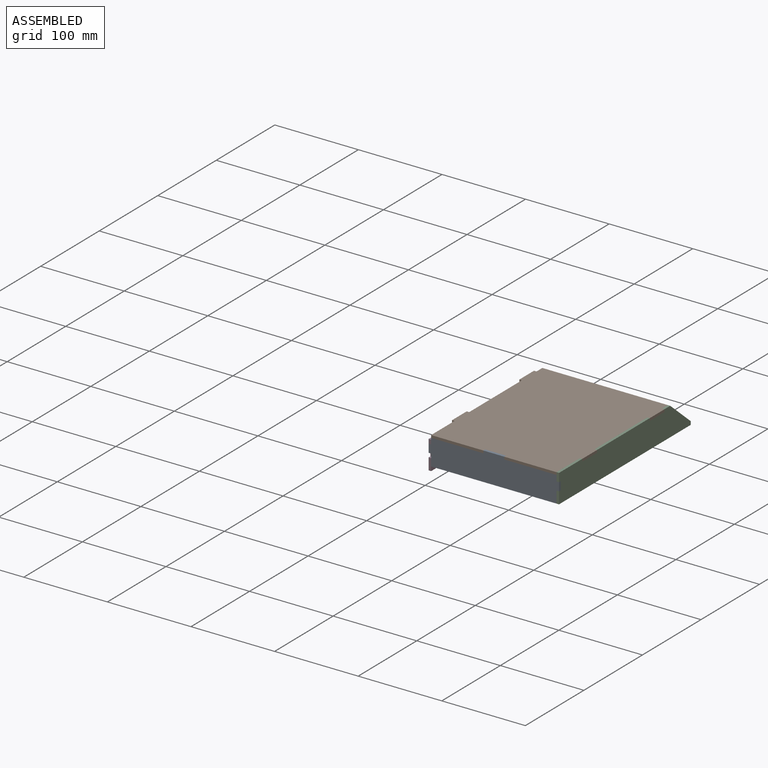
[diagram: assembled view]
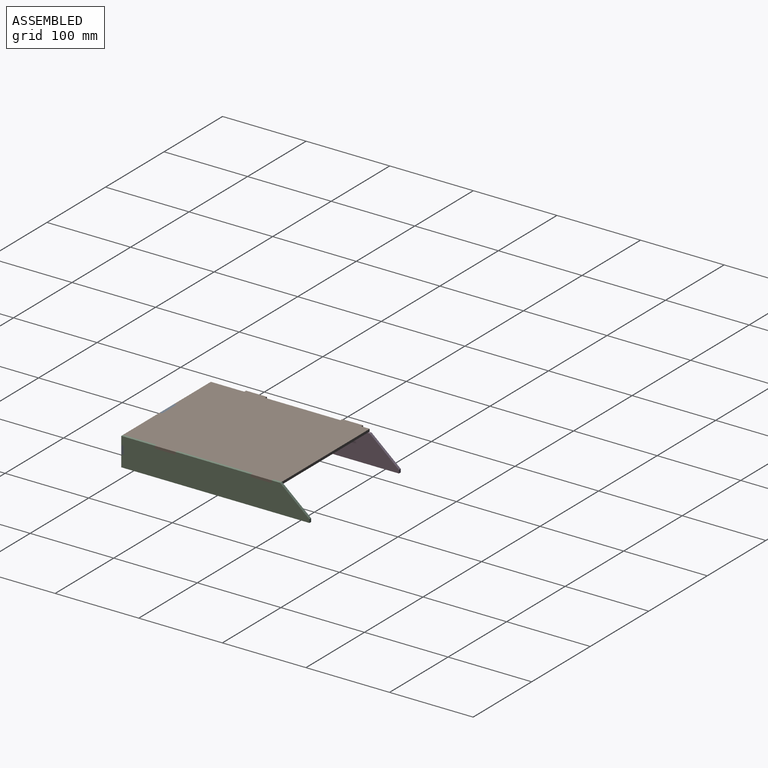
[diagram: assembled view, second angle]
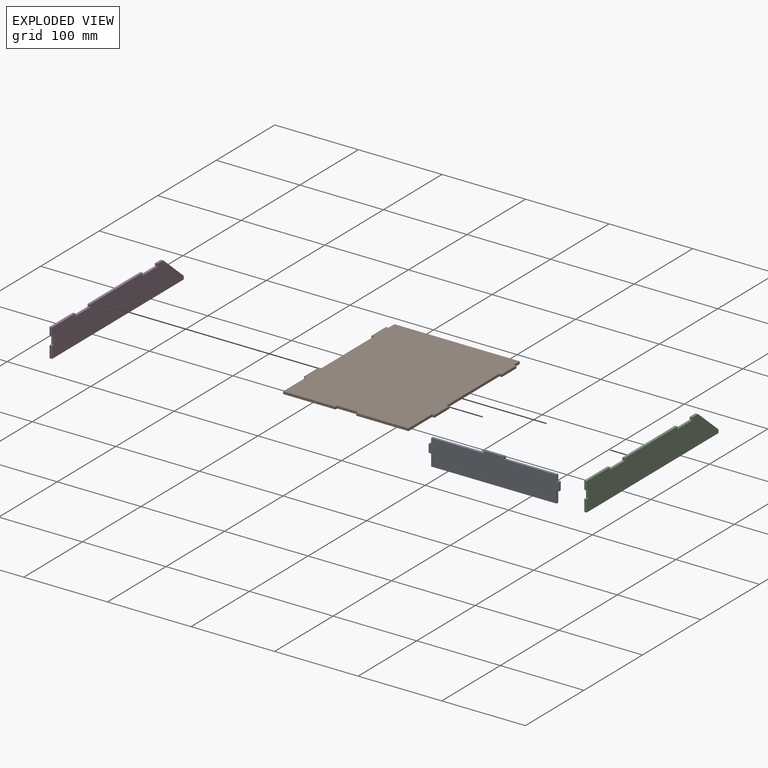
[diagram: exploded view]
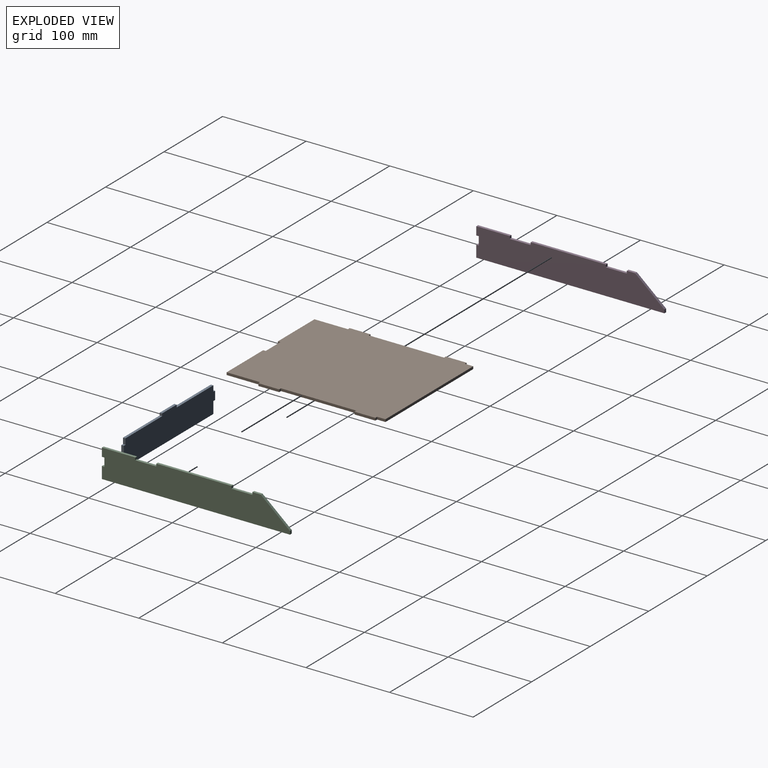
[diagram: exploded view, second angle]
ASSEMBLY  parts=4 mates=6
PART A: 18 faces, bbox 156x34x3 mm
  f0: plane 62.5x3mm, normal (0,1,0), area 187.5mm2, adj f1,f15,f16,f17
  f1: plane 7x3mm, normal (-1,0,0), area 21mm2, adj f0,f2,f16,f17
  f2: plane 3x3mm, normal (0,1,0), area 9mm2, adj f1,f3,f16,f17
  f3: plane 10x3mm, normal (-1,0,0), area 30mm2, adj f2,f4,f16,f17
  f4: plane 3x3mm, normal (0,-1,0), area 9mm2, adj f3,f5,f16,f17
  f5: plane 14x3mm, normal (-1,0,0), area 42mm2, adj f4,f6,f16,f17
  f6: plane 150x3mm, normal (0,-1,0), area 450mm2, adj f5,f7,f16,f17
  f7: plane 14x3mm, normal (1,0,0), area 42mm2, adj f6,f8,f16,f17
  f8: plane 3x3mm, normal (0,-1,0), area 9mm2, adj f7,f9,f16,f17
  f9: plane 10x3mm, normal (1,0,0), area 30mm2, adj f8,f10,f16,f17
  f10: plane 3x3mm, normal (0,1,0), area 9mm2, adj f9,f11,f16,f17
  f11: plane 7x3mm, normal (1,0,0), area 21mm2, adj f10,f12,f16,f17
  f12: plane 62.5x3mm, normal (0,1,0), area 187.5mm2, adj f11,f13,f16,f17
  f13: plane 3x3mm, normal (1,0,0), area 9mm2, adj f12,f14,f16,f17
  f14: plane 25x3mm, normal (0,1,0), area 75mm2, adj f13,f15,f16,f17
  f15: plane 3x3mm, normal (-1,0,0), area 9mm2, adj f0,f14,f16,f17
  f16: plane 156x34mm, normal (0,0,1), area 4785mm2, adj f0,f1,f2,f3,f4,f5,f6,f7
  f17: plane 156x34mm, normal (0,0,-1), area 4785mm2, adj f0,f1,f2,f3,f4,f5,f6,f7
PART B: 26 faces, bbox 156x190x3 mm
  f0: plane 3x3mm, normal (-1,0,0), area 9mm2, adj f1,f23,f24,f25
  f1: plane 62.5x3mm, normal (0,-1,0), area 187.5mm2, adj f0,f2,f24,f25
  f2: plane 40x3mm, normal (1,0,0), area 120mm2, adj f1,f3,f24,f25
  f3: plane 3x3mm, normal (0,-1,0), area 9mm2, adj f2,f4,f24,f25
  f4: plane 25x3mm, normal (1,0,0), area 75mm2, adj f3,f5,f24,f25
  f5: plane 3x3mm, normal (0,1,0), area 9mm2, adj f4,f6,f24,f25
  f6: plane 90x3mm, normal (1,0,0), area 270mm2, adj f5,f7,f24,f25
  f7: plane 3x3mm, normal (0,-1,0), area 9mm2, adj f6,f8,f24,f25
  f8: plane 25x3mm, normal (1,0,0), area 75mm2, adj f7,f9,f24,f25
  f9: plane 3x3mm, normal (0,1,0), area 9mm2, adj f8,f10,f24,f25
  f10: plane 10x3mm, normal (1,0,0), area 30mm2, adj f9,f11,f24,f25
  f11: plane 150x3mm, normal (0,1,0), area 450mm2, adj f10,f12,f24,f25
  f12: plane 10x3mm, normal (-1,0,0), area 30mm2, adj f11,f13,f24,f25
  f13: plane 3x3mm, normal (0,1,0), area 9mm2, adj f12,f14,f24,f25
  f14: plane 25x3mm, normal (-1,0,0), area 75mm2, adj f13,f15,f24,f25
  f15: plane 3x3mm, normal (0,-1,0), area 9mm2, adj f14,f16,f24,f25
  f16: plane 90x3mm, normal (-1,0,0), area 270mm2, adj f15,f17,f24,f25
  f17: plane 3x3mm, normal (0,1,0), area 9mm2, adj f16,f18,f24,f25
  f18: plane 25x3mm, normal (-1,0,0), area 75mm2, adj f17,f19,f24,f25
  f19: plane 3x3mm, normal (0,-1,0), area 9mm2, adj f18,f20,f24,f25
  f20: plane 40x3mm, normal (-1,0,0), area 120mm2, adj f19,f21,f24,f25
  f21: plane 62.5x3mm, normal (0,-1,0), area 187.5mm2, adj f20,f22,f24,f25
  f22: plane 3x3mm, normal (1,0,0), area 9mm2, adj f21,f23,f24,f25
  f23: plane 25x3mm, normal (0,-1,0), area 75mm2, adj f0,f22,f24,f25
  f24: plane 190x156mm, normal (0,0,1), area 28725mm2, adj f0,f1,f2,f3,f4,f5,f6,f7
  f25: plane 190x156mm, normal (0,0,-1), area 28725mm2, adj f0,f1,f2,f3,f4,f5,f6,f7
PART C: 19 faces, bbox 34x225x3 mm
  f0: plane 35x30mm, normal (-0.76,0.65,0), area 138.3mm2, adj f1,f16,f17,f18
  f1: plane 10x3mm, normal (-1,0,0), area 30mm2, adj f0,f2,f17,f18
  f2: plane 3x3mm, normal (0,-1,0), area 9mm2, adj f1,f3,f17,f18
  f3: plane 25x3mm, normal (-1,0,0), area 75mm2, adj f2,f4,f17,f18
  f4: plane 3x3mm, normal (0,1,0), area 9mm2, adj f3,f5,f17,f18
  f5: plane 90x3mm, normal (-1,0,0), area 270mm2, adj f4,f6,f17,f18
  f6: plane 3x3mm, normal (0,-1,0), area 9mm2, adj f5,f7,f17,f18
  f7: plane 25x3mm, normal (-1,0,0), area 75mm2, adj f6,f8,f17,f18
  f8: plane 3x3mm, normal (0,1,0), area 9mm2, adj f7,f9,f17,f18
  f9: plane 40x3mm, normal (-1,0,0), area 120mm2, adj f8,f10,f17,f18
  f10: plane 10x3mm, normal (0,-1,0), area 30mm2, adj f9,f11,f17,f18
  f11: plane 3x3mm, normal (1,0,0), area 9mm2, adj f10,f12,f17,f18
  f12: plane 10x3mm, normal (0,-1,0), area 30mm2, adj f11,f13,f17,f18
  f13: plane 3x3mm, normal (-1,0,0), area 9mm2, adj f12,f14,f17,f18
  f14: plane 14x3mm, normal (0,-1,0), area 42mm2, adj f13,f15,f17,f18
  f15: plane 225x3mm, normal (1,0,0), area 675mm2, adj f14,f16,f17,f18
  f16: plane 4x3mm, normal (0,1,0), area 12mm2, adj f0,f15,f17,f18
  f17: plane 225x34mm, normal (0,0,1), area 6945mm2, adj f0,f1,f2,f3,f4,f5,f6,f7
  f18: plane 225x34mm, normal (0,0,-1), area 6945mm2, adj f0,f1,f2,f3,f4,f5,f6,f7
PART D: 19 faces, bbox 34x225x3 mm
  f0: plane 35x30mm, normal (0.76,0.65,0), area 138.3mm2, adj f1,f16,f17,f18
  f1: plane 4x3mm, normal (0,1,0), area 12mm2, adj f0,f2,f17,f18
  f2: plane 225x3mm, normal (-1,0,0), area 675mm2, adj f1,f3,f17,f18
  f3: plane 14x3mm, normal (0,-1,0), area 42mm2, adj f2,f4,f17,f18
  f4: plane 3x3mm, normal (1,0,0), area 9mm2, adj f3,f5,f17,f18
  f5: plane 10x3mm, normal (0,-1,0), area 30mm2, adj f4,f6,f17,f18
  f6: plane 3x3mm, normal (-1,0,0), area 9mm2, adj f5,f7,f17,f18
  f7: plane 10x3mm, normal (0,-1,0), area 30mm2, adj f6,f8,f17,f18
  f8: plane 40x3mm, normal (1,0,0), area 120mm2, adj f7,f9,f17,f18
  f9: plane 3x3mm, normal (0,1,0), area 9mm2, adj f8,f10,f17,f18
  f10: plane 25x3mm, normal (1,0,0), area 75mm2, adj f9,f11,f17,f18
  f11: plane 3x3mm, normal (0,-1,0), area 9mm2, adj f10,f12,f17,f18
  f12: plane 90x3mm, normal (1,0,0), area 270mm2, adj f11,f13,f17,f18
  f13: plane 3x3mm, normal (0,1,0), area 9mm2, adj f12,f14,f17,f18
  f14: plane 25x3mm, normal (1,0,0), area 75mm2, adj f13,f15,f17,f18
  f15: plane 3x3mm, normal (0,-1,0), area 9mm2, adj f14,f16,f17,f18
  f16: plane 10x3mm, normal (1,0,0), area 30mm2, adj f0,f15,f17,f18
  f17: plane 225x34mm, normal (0,0,1), area 6945mm2, adj f0,f1,f2,f3,f4,f5,f6,f7
  f18: plane 225x34mm, normal (0,0,-1), area 6945mm2, adj f0,f1,f2,f3,f4,f5,f6,f7
PLACE A rot(axis=(1,0,0),90deg) t=(-23.07,-189.47,-51.46)mm
PLACE B t=(-23.07,-192.47,-51.46)mm
PLACE C rot(axis=(0,1,0),90deg) t=(51.93,-192.47,26.54)mm
PLACE D rot(axis=(0,-1,0),90deg) t=(-98.07,-192.47,21.54)mm
MATE planar A.f3 <-> D.f17  axis (-1,0,0) through (-101.07,-190.97,-63.46)mm
MATE planar D.f7 <-> A.f16  axis (0,-1,0) through (-99.57,-192.47,-58.46)mm
MATE planar B.f8 <-> C.f17  axis (1,0,0) through (54.93,-24.97,-49.96)mm
MATE planar B.f24 <-> A.f14  axis (0,0,1) through (-23.07,-97.07,-48.46)mm
MATE planar C.f5 <-> B.f24  axis (0,0,1) through (53.43,-82.47,-48.46)mm
MATE planar D.f17 <-> B.f14  axis (-1,0,0) through (-101.07,-87.06,-71.34)mm
